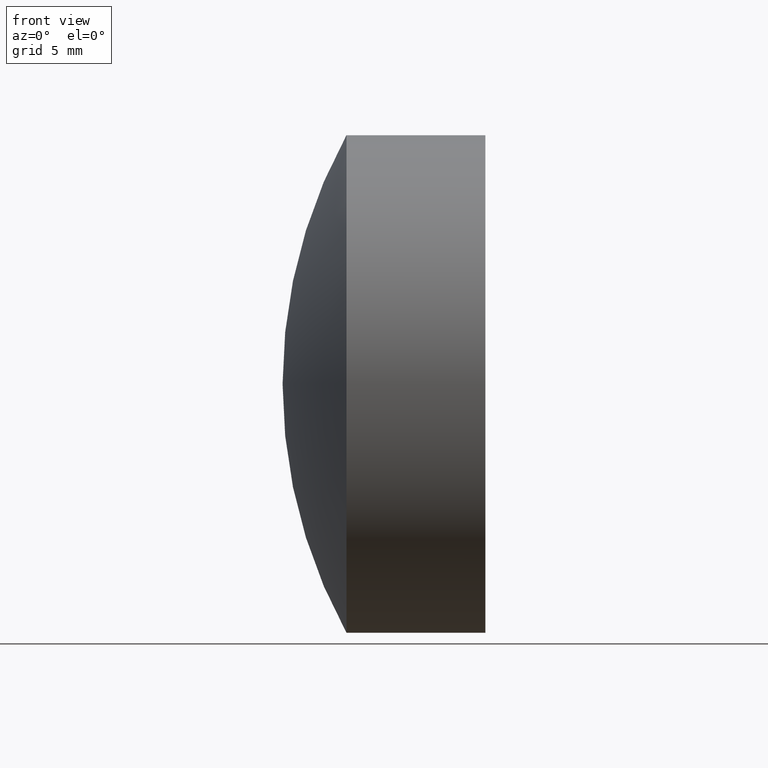
[diagram: clean part render]
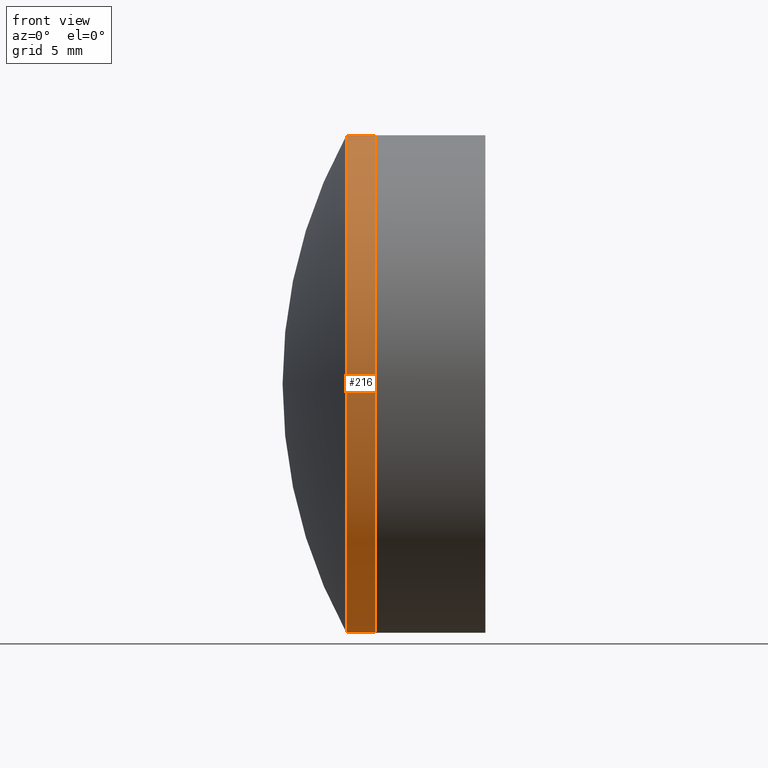
[diagram: same view with one face highlighted and labeled with its STEP entity id]
A machine part, front view. The second image highlights one B-rep face of the part: STEP entity #216.
In plain terms, the highlighted cylindrical surface (partial cylindrical patch) has radius 12.7 mm, axis along (-1, -0, -0).
Its self-contained STEP definition (entity closure, byte-faithful):
#1 = EDGE_CURVE ( 'NONE', #6, #327, #201, .T. ) ;
#6 = VERTEX_POINT ( 'NONE', #75 ) ;
#13 = ORIENTED_EDGE ( 'NONE', *, *, #19, .F. ) ;
#14 = EDGE_CURVE ( 'NONE', #327, #318, #218, .T. ) ;
#19 = EDGE_CURVE ( 'NONE', #6, #160, #177, .T. ) ;
#30 = ORIENTED_EDGE ( 'NONE', *, *, #245, .F. ) ;
#37 = DIRECTION ( 'NONE',  ( -1.000000000000000000, -0.0000000000000000000, -0.0000000000000000000 ) ) ;
#50 = DIRECTION ( 'NONE',  ( -1.000000000000000000, -0.0000000000000000000, -0.0000000000000000000 ) ) ;
#73 = CARTESIAN_POINT ( 'NONE',  ( 38.94353614673029500, 0.0000000000000000000, 0.0000000000000000000 ) ) ;
#75 = CARTESIAN_POINT ( 'NONE',  ( 38.94353614673029500, 1.555301434917138000E-015, -12.69999999999999400 ) ) ;
#76 = CARTESIAN_POINT ( 'NONE',  ( 38.94353614673029500, 0.0000000000000000000, 12.69999999999999400 ) ) ;
#93 = CARTESIAN_POINT ( 'NONE',  ( 37.49133736512716600, 0.0000000000000000000, 0.0000000000000000000 ) ) ;
#98 = ORIENTED_EDGE ( 'NONE', *, *, #14, .T. ) ;
#115 = EDGE_LOOP ( 'NONE', ( #13, #272, #98, #30 ) ) ;
#128 = AXIS2_PLACEMENT_3D ( 'NONE', #73, #319, #163 ) ;
#137 = CIRCLE ( 'NONE', #151, 12.69999999999999400 ) ;
#151 = AXIS2_PLACEMENT_3D ( 'NONE', #93, #37, #332 ) ;
#160 = VERTEX_POINT ( 'NONE', #346 ) ;
#163 = DIRECTION ( 'NONE',  ( 0.0000000000000000000, 0.0000000000000000000, 1.000000000000000000 ) ) ;
#177 = LINE ( 'NONE', #204, #186 ) ;
#178 = AXIS2_PLACEMENT_3D ( 'NONE', #331, #309, #279 ) ;
#186 = VECTOR ( 'NONE', #50, 1000.000000000000000 ) ;
#189 = CYLINDRICAL_SURFACE ( 'NONE', #178, 12.69999999999999400 ) ;
#198 = FACE_OUTER_BOUND ( 'NONE', #115, .T. ) ;
#200 = VECTOR ( 'NONE', #259, 1000.000000000000000 ) ;
#201 = CIRCLE ( 'NONE', #128, 12.69999999999999400 ) ;
#204 = CARTESIAN_POINT ( 'NONE',  ( -0.8160621761658039000, 1.555301434917138000E-015, -12.69999999999999400 ) ) ;
#216 = ADVANCED_FACE ( 'NONE', ( #198 ), #189, .T. ) ;
#218 = LINE ( 'NONE', #252, #200 ) ;
#245 = EDGE_CURVE ( 'NONE', #160, #318, #137, .T. ) ;
#252 = CARTESIAN_POINT ( 'NONE',  ( -0.8160621761658039000, 0.0000000000000000000, 12.69999999999999400 ) ) ;
#259 = DIRECTION ( 'NONE',  ( -1.000000000000000000, -0.0000000000000000000, -0.0000000000000000000 ) ) ;
#261 = CARTESIAN_POINT ( 'NONE',  ( 37.49133736512716600, -1.555301434917138000E-015, 12.69999999999999600 ) ) ;
#272 = ORIENTED_EDGE ( 'NONE', *, *, #1, .T. ) ;
#279 = DIRECTION ( 'NONE',  ( 0.0000000000000000000, 0.0000000000000000000, 1.000000000000000000 ) ) ;
#309 = DIRECTION ( 'NONE',  ( -1.000000000000000000, -0.0000000000000000000, -0.0000000000000000000 ) ) ;
#318 = VERTEX_POINT ( 'NONE', #261 ) ;
#319 = DIRECTION ( 'NONE',  ( -1.000000000000000000, -0.0000000000000000000, -0.0000000000000000000 ) ) ;
#327 = VERTEX_POINT ( 'NONE', #76 ) ;
#331 = CARTESIAN_POINT ( 'NONE',  ( -0.8160621761658039000, 0.0000000000000000000, 0.0000000000000000000 ) ) ;
#332 = DIRECTION ( 'NONE',  ( 0.0000000000000000000, 0.0000000000000000000, 1.000000000000000000 ) ) ;
#346 = CARTESIAN_POINT ( 'NONE',  ( 37.49133736512716600, 0.0000000000000000000, -12.69999999999999600 ) ) ;